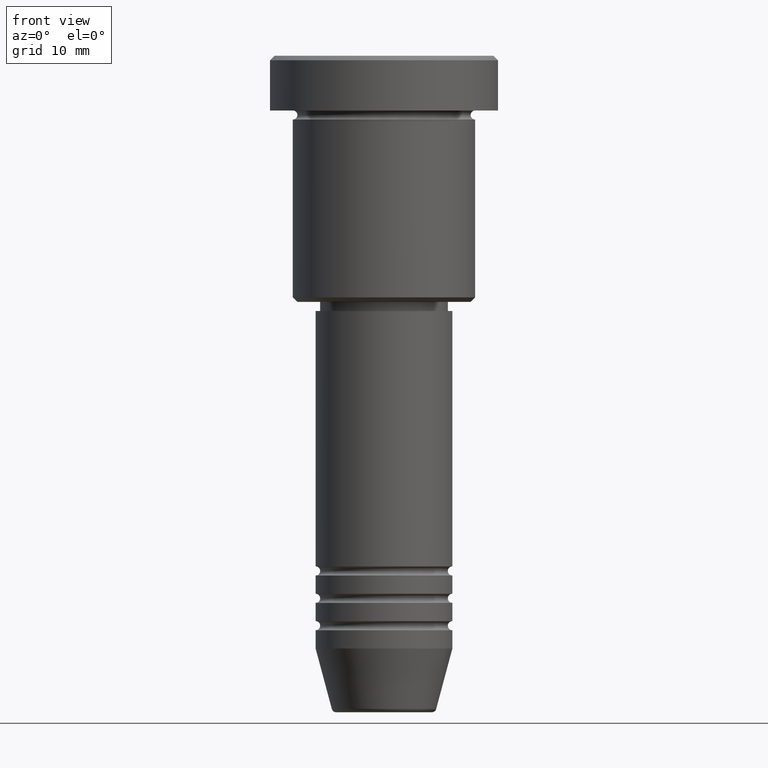
[diagram: clean part render]
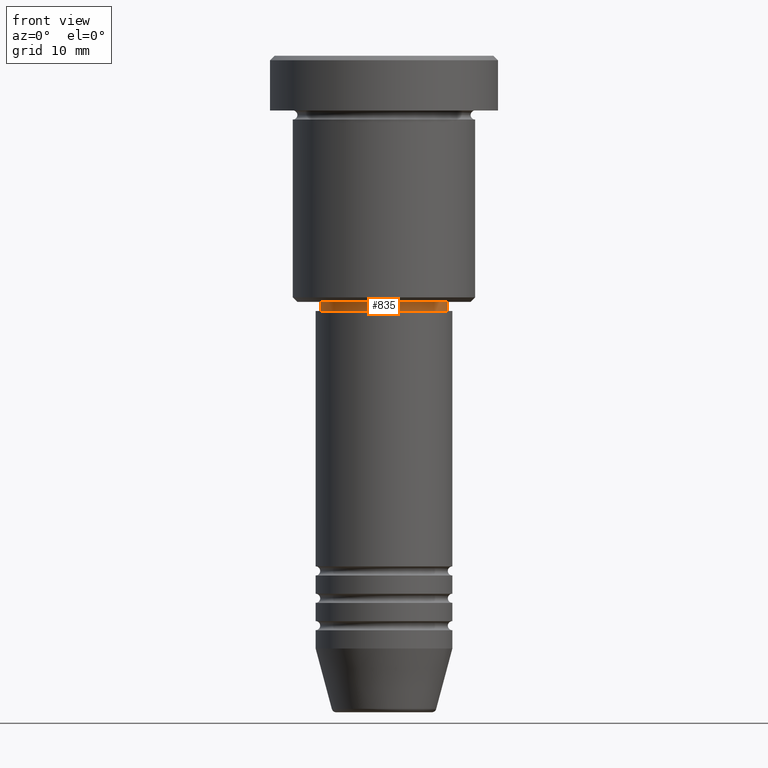
[diagram: same view with one face highlighted and labeled with its STEP entity id]
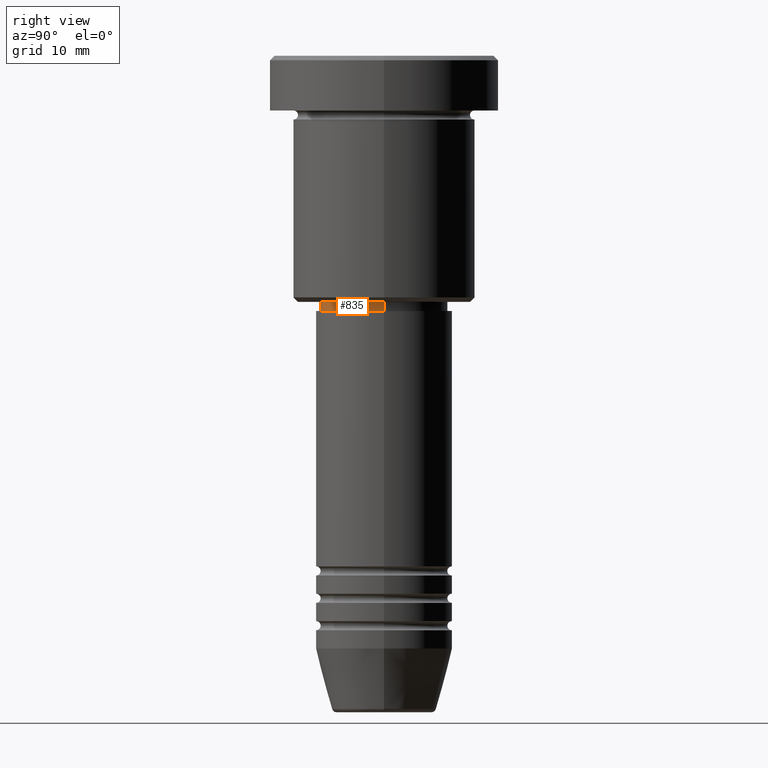
[diagram: same view with one face highlighted and labeled with its STEP entity id]
A machine part, front view. The second image highlights one B-rep face of the part: STEP entity #835.
A second angle (right view) of the same face is appended — the face is thin or edge-on in the first view.
In plain terms, the highlighted cylindrical surface (partial cylindrical patch) has radius 7 mm, axis along (-0, -0, 1).
Its self-contained STEP definition (entity closure, byte-faithful):
#3 = DIRECTION ( 'NONE',  ( -0.000000000000000000, -0.000000000000000000, 1.000000000000000000 ) ) ;
#102 = ORIENTED_EDGE ( 'NONE', *, *, #1111, .T. ) ;
#177 = DIRECTION ( 'NONE',  ( -0.000000000000000000, -0.000000000000000000, 1.000000000000000000 ) ) ;
#183 = EDGE_LOOP ( 'NONE', ( #810, #102, #353, #891 ) ) ;
#239 = LINE ( 'NONE', #1153, #533 ) ;
#246 = FACE_OUTER_BOUND ( 'NONE', #183, .T. ) ;
#253 = DIRECTION ( 'NONE',  ( 1.000000000000000000, 0.000000000000000000, 0.000000000000000000 ) ) ;
#333 = DIRECTION ( 'NONE',  ( -0.000000000000000000, -0.000000000000000000, 1.000000000000000000 ) ) ;
#348 = AXIS2_PLACEMENT_3D ( 'NONE', #675, #333, #787 ) ;
#353 = ORIENTED_EDGE ( 'NONE', *, *, #858, .T. ) ;
#361 = EDGE_CURVE ( 'NONE', #1176, #435, #604, .T. ) ;
#435 = VERTEX_POINT ( 'NONE', #730 ) ;
#460 = CIRCLE ( 'NONE', #348, 6.999999999999999112 ) ;
#490 = VERTEX_POINT ( 'NONE', #1053 ) ;
#507 = DIRECTION ( 'NONE',  ( -0.000000000000000000, -0.000000000000000000, 1.000000000000000000 ) ) ;
#527 = CARTESIAN_POINT ( 'NONE',  ( -6.999999999999999112, 8.572527594031472204E-16, 0.000000000000000000 ) ) ;
#533 = VECTOR ( 'NONE', #878, 1000.000000000000000 ) ;
#538 = CARTESIAN_POINT ( 'NONE',  ( -6.999999999999999112, 8.572527594031472204E-16, -28.00000000000000355 ) ) ;
#584 = CARTESIAN_POINT ( 'NONE',  ( 6.999999999999999112, 0.000000000000000000, -28.00000000000000355 ) ) ;
#589 = CARTESIAN_POINT ( 'NONE',  ( 0.000000000000000000, 0.000000000000000000, -27.00000000000000355 ) ) ;
#604 = LINE ( 'NONE', #527, #1068 ) ;
#606 = CARTESIAN_POINT ( 'NONE',  ( 0.000000000000000000, 0.000000000000000000, 0.000000000000000000 ) ) ;
#675 = CARTESIAN_POINT ( 'NONE',  ( 0.000000000000000000, 0.000000000000000000, -28.00000000000000355 ) ) ;
#730 = CARTESIAN_POINT ( 'NONE',  ( -6.999999999999999112, 8.572527594031472204E-16, -27.00000000000000355 ) ) ;
#787 = DIRECTION ( 'NONE',  ( 1.000000000000000000, 0.000000000000000000, 0.000000000000000000 ) ) ;
#798 = EDGE_CURVE ( 'NONE', #435, #490, #1122, .T. ) ;
#810 = ORIENTED_EDGE ( 'NONE', *, *, #361, .F. ) ;
#835 = ADVANCED_FACE ( 'NONE', ( #246 ), #893, .T. ) ;
#858 = EDGE_CURVE ( 'NONE', #925, #490, #239, .T. ) ;
#878 = DIRECTION ( 'NONE',  ( -0.000000000000000000, -0.000000000000000000, 1.000000000000000000 ) ) ;
#891 = ORIENTED_EDGE ( 'NONE', *, *, #798, .F. ) ;
#893 = CYLINDRICAL_SURFACE ( 'NONE', #991, 6.999999999999999112 ) ;
#925 = VERTEX_POINT ( 'NONE', #584 ) ;
#980 = DIRECTION ( 'NONE',  ( 1.000000000000000000, 0.000000000000000000, 0.000000000000000000 ) ) ;
#991 = AXIS2_PLACEMENT_3D ( 'NONE', #606, #507, #980 ) ;
#1028 = AXIS2_PLACEMENT_3D ( 'NONE', #589, #3, #253 ) ;
#1053 = CARTESIAN_POINT ( 'NONE',  ( 6.999999999999999112, 0.000000000000000000, -27.00000000000000355 ) ) ;
#1068 = VECTOR ( 'NONE', #177, 1000.000000000000000 ) ;
#1111 = EDGE_CURVE ( 'NONE', #1176, #925, #460, .T. ) ;
#1122 = CIRCLE ( 'NONE', #1028, 6.999999999999999112 ) ;
#1153 = CARTESIAN_POINT ( 'NONE',  ( 6.999999999999999112, 0.000000000000000000, 0.000000000000000000 ) ) ;
#1176 = VERTEX_POINT ( 'NONE', #538 ) ;